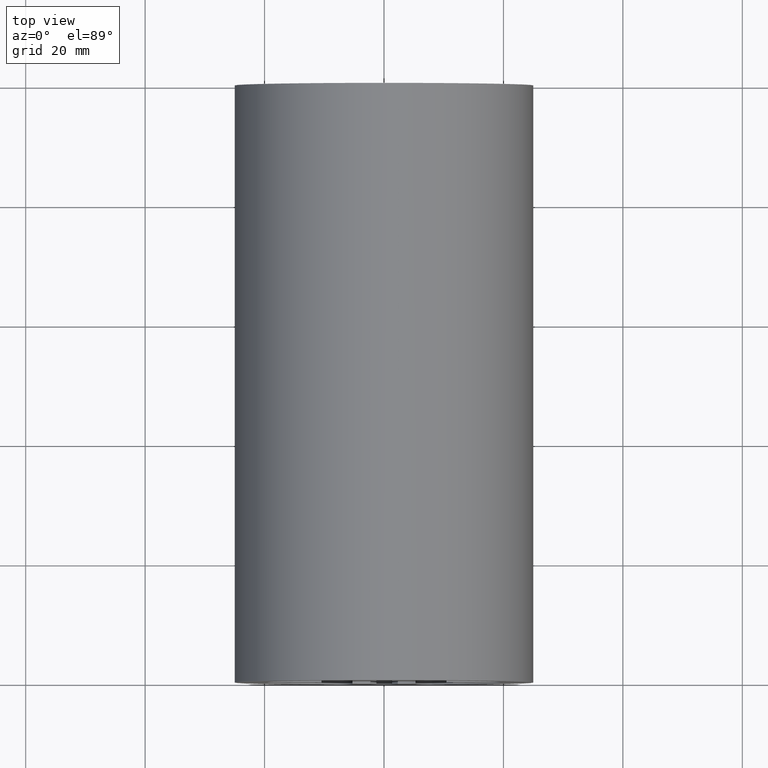
[diagram: clean part render]
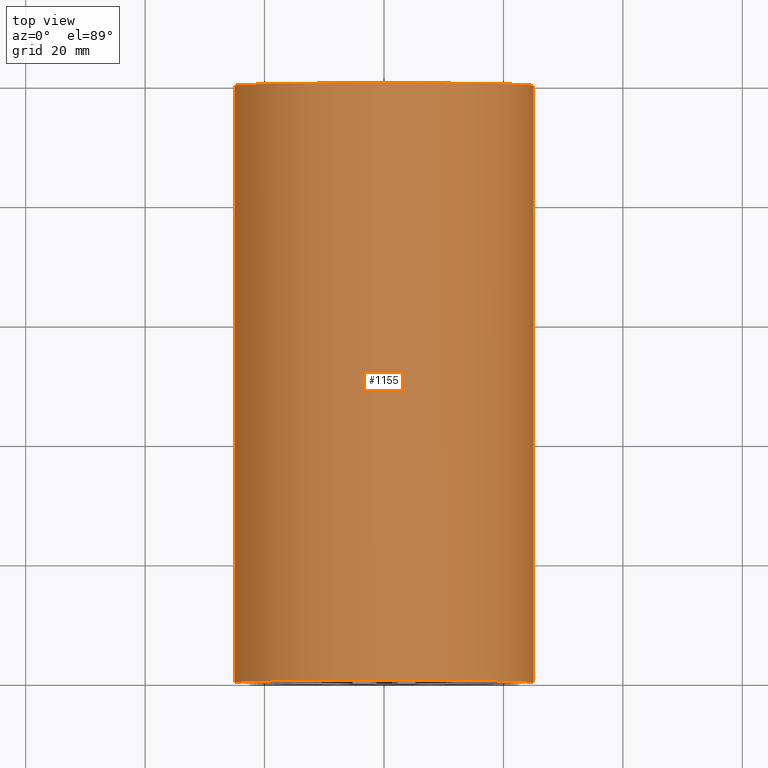
[diagram: same view with one face highlighted and labeled with its STEP entity id]
A machine part, top view. The second image highlights one B-rep face of the part: STEP entity #1155.
In plain terms, the highlighted cylindrical surface (bore or boss wall) has radius 25 mm, axis along (0, 1, 0).
Its self-contained STEP definition (entity closure, byte-faithful):
#99=FACE_OUTER_BOUND('',#158,.T.);
#158=EDGE_LOOP('',(#948,#949,#950,#951));
#267=LINE('',#2004,#372);
#372=VECTOR('',#1656,25.);
#437=CIRCLE('',#1302,25.);
#438=CIRCLE('',#1303,25.);
#551=VERTEX_POINT('',#2001);
#552=VERTEX_POINT('',#2003);
#721=EDGE_CURVE('',#551,#551,#437,.T.);
#722=EDGE_CURVE('',#551,#552,#267,.T.);
#723=EDGE_CURVE('',#552,#552,#438,.T.);
#948=ORIENTED_EDGE('',*,*,#721,.F.);
#949=ORIENTED_EDGE('',*,*,#722,.T.);
#950=ORIENTED_EDGE('',*,*,#723,.F.);
#951=ORIENTED_EDGE('',*,*,#722,.F.);
#1098=CYLINDRICAL_SURFACE('',#1301,25.);
#1155=ADVANCED_FACE('',(#99),#1098,.T.);
#1301=AXIS2_PLACEMENT_3D('',#2000,#1652,#1653);
#1302=AXIS2_PLACEMENT_3D('',#2002,#1654,#1655);
#1303=AXIS2_PLACEMENT_3D('',#2005,#1657,#1658);
#1652=DIRECTION('center_axis',(0.,1.,0.));
#1653=DIRECTION('ref_axis',(1.,0.,0.));
#1654=DIRECTION('center_axis',(0.,1.,0.));
#1655=DIRECTION('ref_axis',(1.,0.,0.));
#1656=DIRECTION('',(0.,-1.,0.));
#1657=DIRECTION('center_axis',(0.,-1.,0.));
#1658=DIRECTION('ref_axis',(1.,0.,0.));
#2000=CARTESIAN_POINT('Origin',(3.5527136788005E-14,0.,0.));
#2001=CARTESIAN_POINT('',(-25.,100.,3.06161699786838E-15));
#2002=CARTESIAN_POINT('Origin',(3.5527136788005E-14,100.,0.));
#2003=CARTESIAN_POINT('',(-25.,0.,3.06161699786838E-15));
#2004=CARTESIAN_POINT('',(-25.,0.,3.06161699786838E-15));
#2005=CARTESIAN_POINT('Origin',(3.5527136788005E-14,0.,0.));